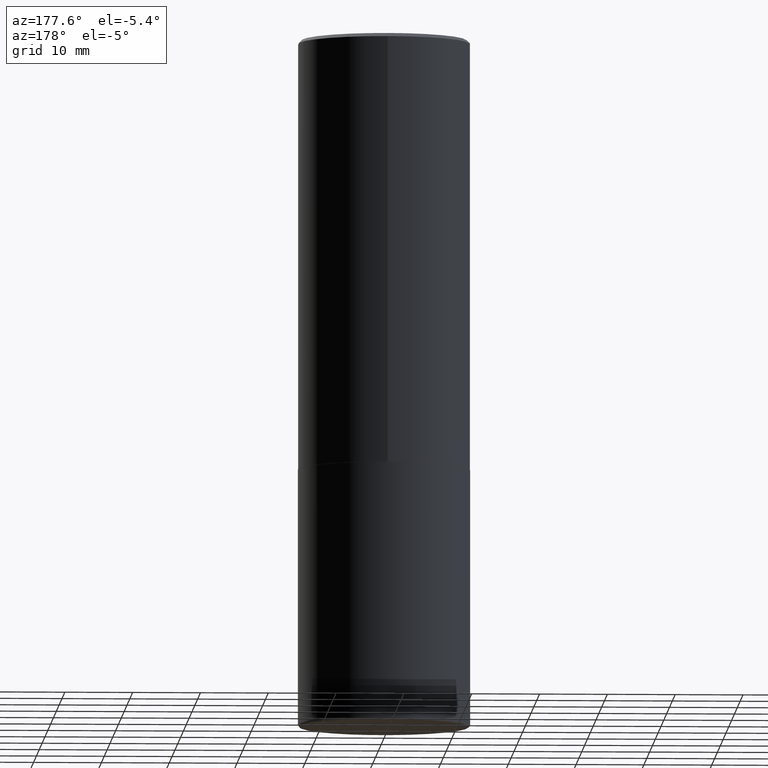
[diagram: clean part render]
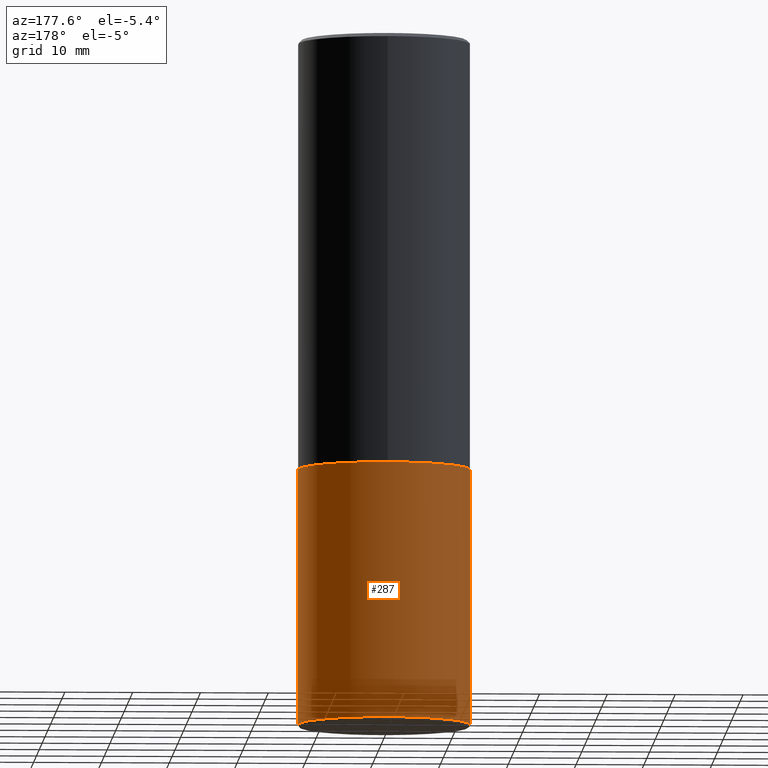
[diagram: same view with one face highlighted and labeled with its STEP entity id]
A machine part, auxiliary view. The second image highlights one B-rep face of the part: STEP entity #287.
In plain terms, the highlighted cylindrical surface (partial cylindrical patch) has radius 12.7 mm, axis along (-0, 0, 1).
Its self-contained STEP definition (entity closure, byte-faithful):
#5 = EDGE_CURVE ( 'NONE', #264, #274, #129, .T. ) ;
#16 = LINE ( 'NONE', #59, #60 ) ;
#29 = ORIENTED_EDGE ( 'NONE', *, *, #356, .F. ) ;
#34 = VECTOR ( 'NONE', #166, 39.37007874015748143 ) ;
#36 = CARTESIAN_POINT ( 'NONE',  ( 9.745193192647769069E-29, -1.391355313528993407E-14, -3.984999999999999876 ) ) ;
#40 = DIRECTION ( 'NONE',  ( 1.000000000000000000, -6.982962677686269077E-15, 0.000000000000000000 ) ) ;
#44 = DIRECTION ( 'NONE',  ( -2.445468806185136597E-29, 3.491481338843145583E-15, 1.000000000000000000 ) ) ;
#59 = CARTESIAN_POINT ( 'NONE',  ( -0.5000000000000000000, 3.552713678800500929E-15, -2.459467545127452891E-29 ) ) ;
#60 = VECTOR ( 'NONE', #413, 39.37007874015748143 ) ;
#65 = AXIS2_PLACEMENT_3D ( 'NONE', #169, #228, #296 ) ;
#67 = VERTEX_POINT ( 'NONE', #185 ) ;
#103 = EDGE_CURVE ( 'NONE', #197, #274, #16, .T. ) ;
#110 = FACE_OUTER_BOUND ( 'NONE', #145, .T. ) ;
#129 = CIRCLE ( 'NONE', #163, 0.5000000000000000000 ) ;
#136 = LINE ( 'NONE', #201, #34 ) ;
#145 = EDGE_LOOP ( 'NONE', ( #393, #323, #207, #29 ) ) ;
#163 = AXIS2_PLACEMENT_3D ( 'NONE', #199, #328, #40 ) ;
#166 = DIRECTION ( 'NONE',  ( -2.445468806185136877E-29, 3.491481338843145188E-15, 1.000000000000000000 ) ) ;
#169 = CARTESIAN_POINT ( 'NONE',  ( 0.000000000000000000, 0.000000000000000000, 0.000000000000000000 ) ) ;
#185 = CARTESIAN_POINT ( 'NONE',  ( 0.5000000000000001110, -1.740503447413306742E-14, -3.984999999999999876 ) ) ;
#197 = VERTEX_POINT ( 'NONE', #302 ) ;
#199 = CARTESIAN_POINT ( 'NONE',  ( 6.113672015462842613E-29, -8.728703347107864943E-15, -2.500000000000000000 ) ) ;
#201 = CARTESIAN_POINT ( 'NONE',  ( 0.5000000000000000000, -3.491481338843133355E-15, 2.438088387897967896E-29 ) ) ;
#206 = CARTESIAN_POINT ( 'NONE',  ( -0.5000000000000000000, -7.768414562398398576E-15, -2.500000000000000000 ) ) ;
#207 = ORIENTED_EDGE ( 'NONE', *, *, #5, .F. ) ;
#208 = EDGE_CURVE ( 'NONE', #67, #197, #234, .T. ) ;
#228 = DIRECTION ( 'NONE',  ( -2.445468806185136597E-29, 3.491481338843145583E-15, 1.000000000000000000 ) ) ;
#234 = CIRCLE ( 'NONE', #271, 0.5000000000000000000 ) ;
#264 = VERTEX_POINT ( 'NONE', #392 ) ;
#271 = AXIS2_PLACEMENT_3D ( 'NONE', #36, #44, #402 ) ;
#274 = VERTEX_POINT ( 'NONE', #206 ) ;
#287 = ADVANCED_FACE ( 'NONE', ( #110 ), #366, .T. ) ;
#296 = DIRECTION ( 'NONE',  ( 1.000000000000000000, -6.982962677686266711E-15, 4.876176775795935793E-29 ) ) ;
#302 = CARTESIAN_POINT ( 'NONE',  ( -0.5000000000000001110, -1.036083945648943156E-14, -3.984999999999999876 ) ) ;
#323 = ORIENTED_EDGE ( 'NONE', *, *, #103, .T. ) ;
#328 = DIRECTION ( 'NONE',  ( -2.445468806185136597E-29, 3.491481338843145583E-15, 1.000000000000000000 ) ) ;
#356 = EDGE_CURVE ( 'NONE', #67, #264, #136, .T. ) ;
#366 = CYLINDRICAL_SURFACE ( 'NONE', #65, 0.5000000000000000000 ) ;
#392 = CARTESIAN_POINT ( 'NONE',  ( 0.5000000000000000000, -1.222018468595099830E-14, -2.500000000000000000 ) ) ;
#393 = ORIENTED_EDGE ( 'NONE', *, *, #208, .T. ) ;
#402 = DIRECTION ( 'NONE',  ( 1.000000000000000000, -6.982962677686266711E-15, 0.000000000000000000 ) ) ;
#413 = DIRECTION ( 'NONE',  ( -2.445468806185136877E-29, 3.491481338843145188E-15, 1.000000000000000000 ) ) ;